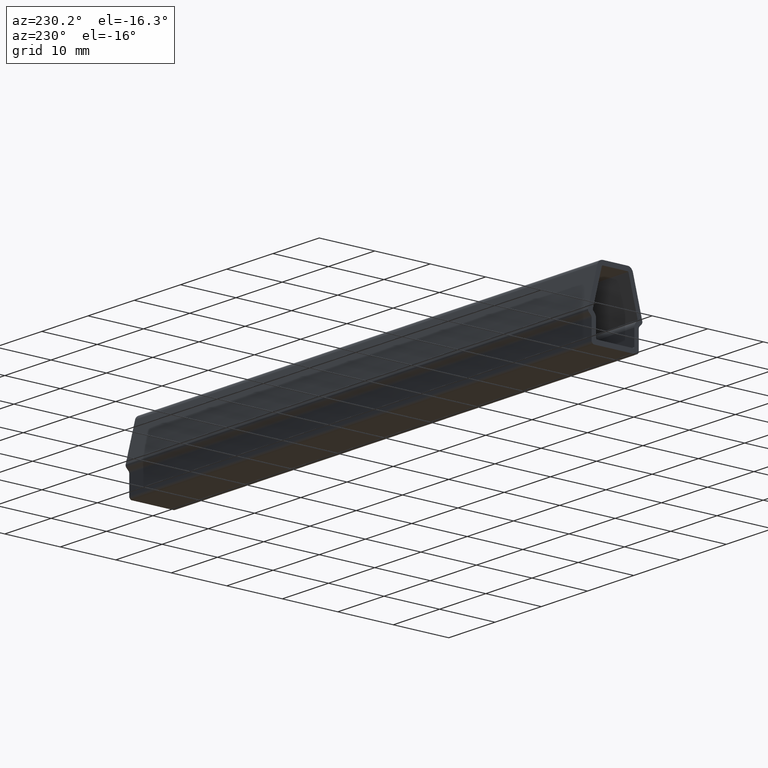
[diagram: clean part render]
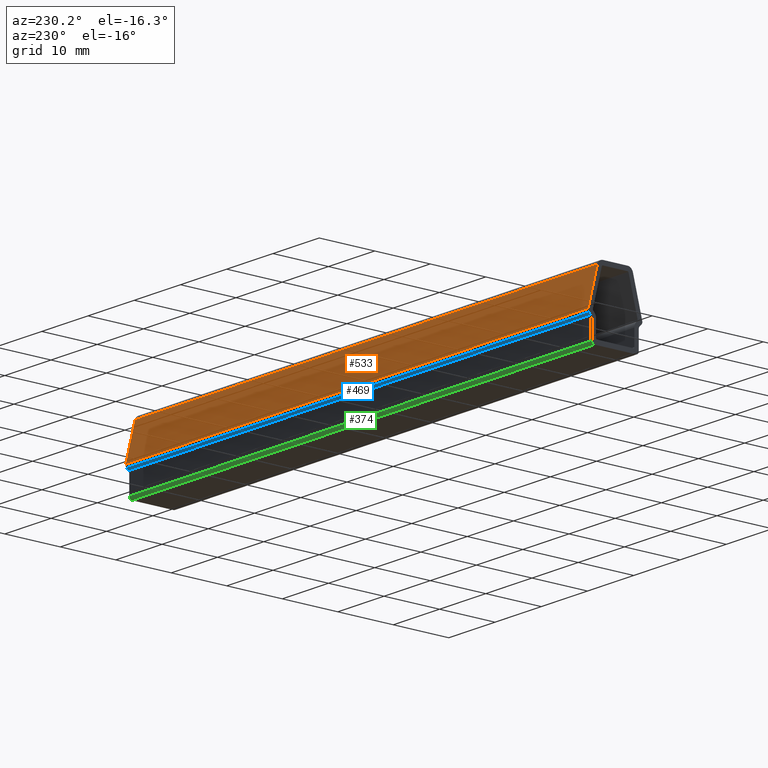
[diagram: same view with three faces highlighted in distinct colors, each labeled with its STEP entity id]
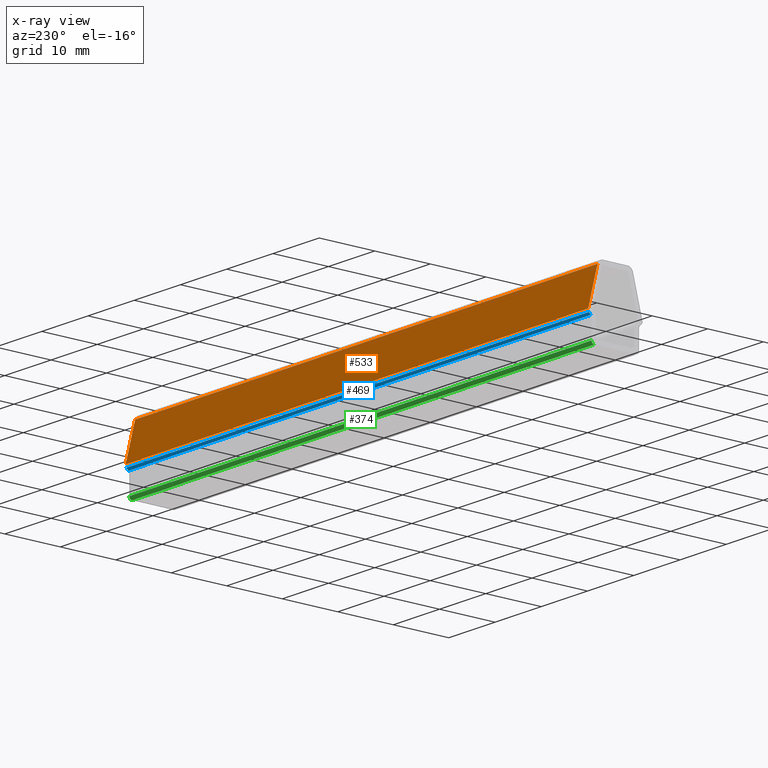
[diagram: x-ray of the same camera — body ghosted, the three highlighted faces saturated]
A machine part, auxiliary view with three faces highlighted in distinct colors.
The next image is the same camera in x-ray (body ghosted, the three faces saturated) — at least one of them is partly hidden behind the body in this view.
Their STEP definitions:

[orange] entity #533 — the highlighted planar face has unit normal (0, -0.9699, -0.2435).
#475=CARTESIAN_POINT('',(0.0,4.887190314410038,4.981991464382389));
#476=VERTEX_POINT('',#475);
#484=CARTESIAN_POINT('',(100.0,4.887190314410038,4.981991464382389));
#485=VERTEX_POINT('',#484);
#486=CARTESIAN_POINT('',(100.0,4.887190314410038,4.981991464382389));
#487=DIRECTION('',(-1.0,0.0,0.0));
#488=VECTOR('',#487,100.0);
#489=LINE('',#486,#488);
#490=EDGE_CURVE('',#485,#476,#489,.T.);
#503=CARTESIAN_POINT('',(105.0,4.972054510252281,4.643917586067794));
#504=DIRECTION('',(0.0,-0.969908671526631,-0.243469030674223));
#505=DIRECTION('',(0.0,-0.243469030674223,0.969908671526631));
#506=AXIS2_PLACEMENT_3D('',#503,#504,#505);
#507=PLANE('',#506);
#508=CARTESIAN_POINT('',(0.0,3.189906397565114,11.743469030674213));
#509=VERTEX_POINT('',#508);
#510=CARTESIAN_POINT('',(0.0,4.887190314410034,4.981991464382389));
#511=DIRECTION('',(0.0,-0.243469030674223,0.969908671526631));
#512=VECTOR('',#511,6.971251793892403);
#513=LINE('',#510,#512);
#514=EDGE_CURVE('',#476,#509,#513,.T.);
#515=ORIENTED_EDGE('',*,*,#514,.T.);
#516=CARTESIAN_POINT('',(100.0,3.189906397565114,11.743469030674213));
#517=VERTEX_POINT('',#516);
#518=CARTESIAN_POINT('',(100.0,3.189906397565114,11.743469030674213));
#519=DIRECTION('',(-1.0,0.0,0.0));
#520=VECTOR('',#519,100.0);
#521=LINE('',#518,#520);
#522=EDGE_CURVE('',#517,#509,#521,.T.);
#523=ORIENTED_EDGE('',*,*,#522,.F.);
#524=CARTESIAN_POINT('',(100.0,4.887190314410034,4.981991464382389));
#525=DIRECTION('',(0.0,-0.243469030674223,0.969908671526631));
#526=VECTOR('',#525,6.971251793892403);
#527=LINE('',#524,#526);
#528=EDGE_CURVE('',#485,#517,#527,.T.);
#529=ORIENTED_EDGE('',*,*,#528,.F.);
#530=ORIENTED_EDGE('',*,*,#490,.T.);
#531=EDGE_LOOP('',(#515,#523,#529,#530));
#532=FACE_OUTER_BOUND('',#531,.T.);
#533=ADVANCED_FACE('',(#532),#507,.F.);

[blue] entity #469 — the highlighted planar face has unit normal (0, -0.7071, 0.7071).
#411=CARTESIAN_POINT('',(0.0,4.395532420194705,4.146446609406716));
#412=VERTEX_POINT('',#411);
#420=CARTESIAN_POINT('',(100.0,4.395532420194705,4.146446609406716));
#421=VERTEX_POINT('',#420);
#422=CARTESIAN_POINT('',(100.0,4.395532420194705,4.146446609406716));
#423=DIRECTION('',(-1.0,0.0,0.0));
#424=VECTOR('',#423,100.0);
#425=LINE('',#422,#424);
#426=EDGE_CURVE('',#421,#412,#425,.T.);
#439=CARTESIAN_POINT('',(105.0,4.377519572742440,4.128433761954454));
#440=DIRECTION('',(0.0,-0.707106781186548,0.707106781186548));
#441=DIRECTION('',(0.0,0.707106781186548,0.707106781186548));
#442=AXIS2_PLACEMENT_3D('',#439,#440,#441);
#443=PLANE('',#442);
#444=CARTESIAN_POINT('',(0.0,4.755789369239992,4.506703558452003));
#445=VERTEX_POINT('',#444);
#446=CARTESIAN_POINT('',(0.0,4.395532420194705,4.146446609406716));
#447=DIRECTION('',(0.0,0.707106781186547,0.707106781186547));
#448=VECTOR('',#447,0.509480263278997);
#449=LINE('',#446,#448);
#450=EDGE_CURVE('',#412,#445,#449,.T.);
#451=ORIENTED_EDGE('',*,*,#450,.T.);
#452=CARTESIAN_POINT('',(100.0,4.755789369239992,4.506703558452003));
#453=VERTEX_POINT('',#452);
#454=CARTESIAN_POINT('',(100.0,4.755789369239992,4.506703558452003));
#455=DIRECTION('',(-1.0,0.0,0.0));
#456=VECTOR('',#455,100.0);
#457=LINE('',#454,#456);
#458=EDGE_CURVE('',#453,#445,#457,.T.);
#459=ORIENTED_EDGE('',*,*,#458,.F.);
#460=CARTESIAN_POINT('',(100.0,4.395532420194705,4.146446609406716));
#461=DIRECTION('',(0.0,0.707106781186547,0.707106781186547));
#462=VECTOR('',#461,0.509480263278997);
#463=LINE('',#460,#462);
#464=EDGE_CURVE('',#421,#453,#463,.T.);
#465=ORIENTED_EDGE('',*,*,#464,.F.);
#466=ORIENTED_EDGE('',*,*,#426,.T.);
#467=EDGE_LOOP('',(#451,#459,#465,#466));
#468=FACE_OUTER_BOUND('',#467,.T.);
#469=ADVANCED_FACE('',(#468),#443,.F.);

[green] entity #374 — the highlighted cylindrical surface (edge-blend (fillet) strip) has radius 0.5 mm, axis along (-1, 0, 0).
#316=CARTESIAN_POINT('',(0.0,3.749085810787975,0.0));
#317=VERTEX_POINT('',#316);
#324=CARTESIAN_POINT('',(100.0,3.749085810787975,0.0));
#325=VERTEX_POINT('',#324);
#326=CARTESIAN_POINT('',(100.0,3.749085810787975,0.0));
#327=DIRECTION('',(-1.0,0.0,0.0));
#328=VECTOR('',#327,100.0);
#329=LINE('',#326,#328);
#330=EDGE_CURVE('',#325,#317,#329,.T.);
#342=CARTESIAN_POINT('',(100.000000009999990,3.749085810787975,0.500000000000000));
#343=DIRECTION('',(-1.0,0.0,0.0));
#344=DIRECTION('',(0.0,-1.0,6.123234E-017));
#345=AXIS2_PLACEMENT_3D('',#342,#343,#344);
#346=CYLINDRICAL_SURFACE('',#345,0.500000000000001);
#347=CARTESIAN_POINT('',(0.0,4.249085810787975,0.500000000000000));
#348=VERTEX_POINT('',#347);
#349=CARTESIAN_POINT('',(0.0,3.749085810787975,0.500000000000000));
#350=DIRECTION('',(1.0,0.0,0.0));
#351=DIRECTION('',(0.0,-1.0,6.123234E-017));
#352=AXIS2_PLACEMENT_3D('',#349,#350,#351);
#353=CIRCLE('',#352,0.500000000000001);
#354=EDGE_CURVE('',#317,#348,#353,.T.);
#355=ORIENTED_EDGE('',*,*,#354,.T.);
#356=CARTESIAN_POINT('',(100.0,4.249085810787975,0.500000000000000));
#357=VERTEX_POINT('',#356);
#358=CARTESIAN_POINT('',(100.0,4.249085810787975,0.500000000000000));
#359=DIRECTION('',(-1.0,0.0,0.0));
#360=VECTOR('',#359,100.0);
#361=LINE('',#358,#360);
#362=EDGE_CURVE('',#357,#348,#361,.T.);
#363=ORIENTED_EDGE('',*,*,#362,.F.);
#364=CARTESIAN_POINT('',(100.0,3.749085810787975,0.500000000000000));
#365=DIRECTION('',(1.0,0.0,0.0));
#366=DIRECTION('',(0.0,-1.0,6.123234E-017));
#367=AXIS2_PLACEMENT_3D('',#364,#365,#366);
#368=CIRCLE('',#367,0.500000000000001);
#369=EDGE_CURVE('',#325,#357,#368,.T.);
#370=ORIENTED_EDGE('',*,*,#369,.F.);
#371=ORIENTED_EDGE('',*,*,#330,.T.);
#372=EDGE_LOOP('',(#355,#363,#370,#371));
#373=FACE_OUTER_BOUND('',#372,.T.);
#374=ADVANCED_FACE('',(#373),#346,.T.);